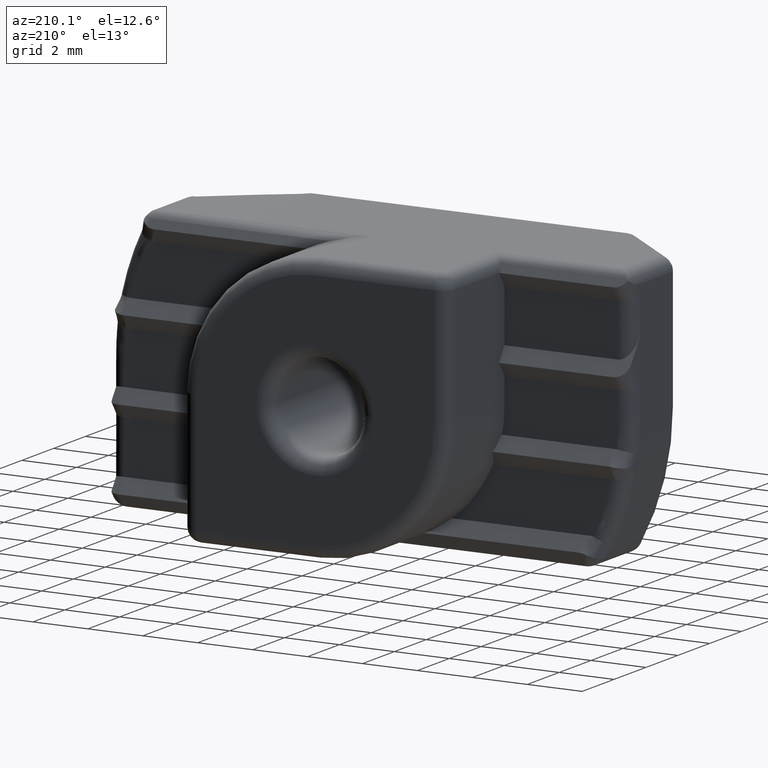
[diagram: clean part render]
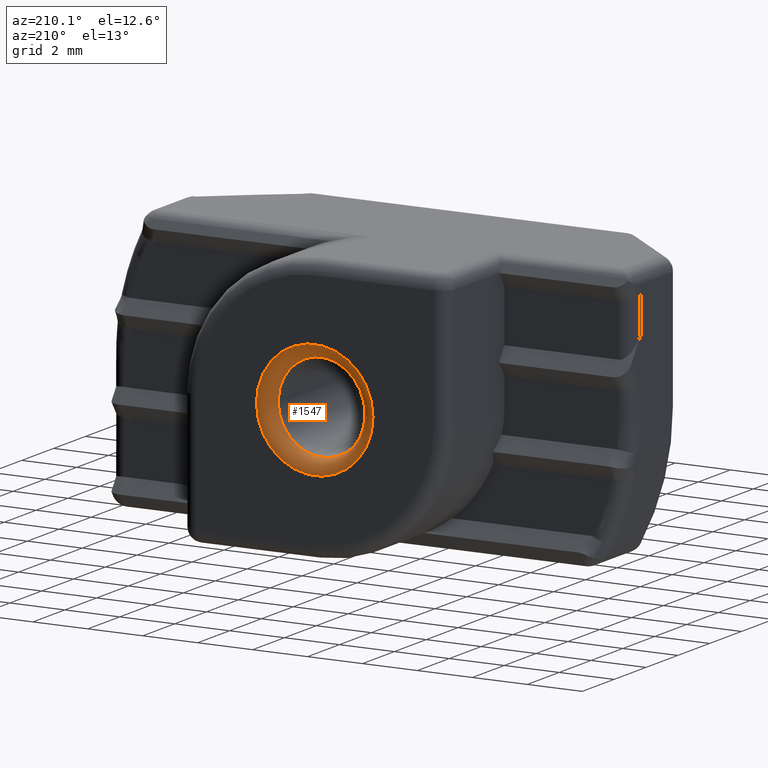
[diagram: same view with one face highlighted and labeled with its STEP entity id]
A machine part, auxiliary view. The second image highlights one B-rep face of the part: STEP entity #1547.
In plain terms, the highlighted toroidal blend (fillet) surface has major radius 2.121 mm and minor (blend) radius 0.5 mm.
Its self-contained STEP definition (entity closure, byte-faithful):
#66=FACE_BOUND('',#297,.T.);
#71=CIRCLE('',#1657,1.621);
#72=CIRCLE('',#1658,2.121);
#145=TOROIDAL_SURFACE('',#1656,2.121,0.5);
#192=FACE_OUTER_BOUND('',#296,.T.);
#296=EDGE_LOOP('',(#1044));
#297=EDGE_LOOP('',(#1045));
#656=VERTEX_POINT('',#2407);
#657=VERTEX_POINT('',#2409);
#800=EDGE_CURVE('',#656,#656,#71,.T.);
#801=EDGE_CURVE('',#657,#657,#72,.T.);
#1044=ORIENTED_EDGE('',*,*,#800,.T.);
#1045=ORIENTED_EDGE('',*,*,#801,.T.);
#1547=ADVANCED_FACE('',(#192,#66),#145,.T.);
#1656=AXIS2_PLACEMENT_3D('',#2406,#1883,#1884);
#1657=AXIS2_PLACEMENT_3D('',#2408,#1885,#1886);
#1658=AXIS2_PLACEMENT_3D('',#2410,#1887,#1888);
#1883=DIRECTION('center_axis',(0.,-1.,0.));
#1884=DIRECTION('ref_axis',(0.,0.,-1.));
#1885=DIRECTION('center_axis',(0.,-1.,0.));
#1886=DIRECTION('ref_axis',(1.,0.,-1.22464679914735E-16));
#1887=DIRECTION('center_axis',(0.,1.,0.));
#1888=DIRECTION('ref_axis',(1.,0.,-1.22464679914735E-16));
#2406=CARTESIAN_POINT('Origin',(1.66533453693773E-15,2.7,1.38777878078145E-15));
#2407=CARTESIAN_POINT('',(-1.621,2.7,1.38777878078145E-15));
#2408=CARTESIAN_POINT('Origin',(1.66533453693773E-15,2.7,1.38777878078145E-15));
#2409=CARTESIAN_POINT('',(-2.121,3.2,1.90727395297975E-15));
#2410=CARTESIAN_POINT('Origin',(1.66533453693773E-15,3.2,1.38777878078145E-15));